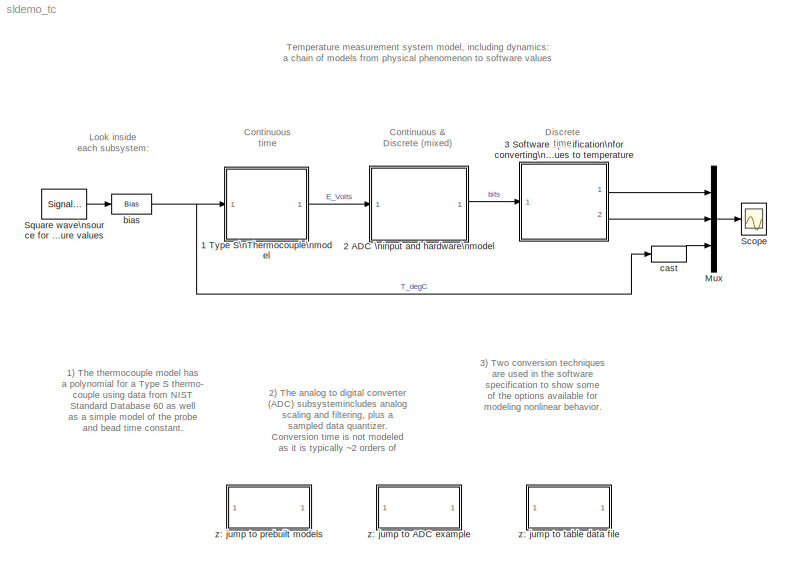
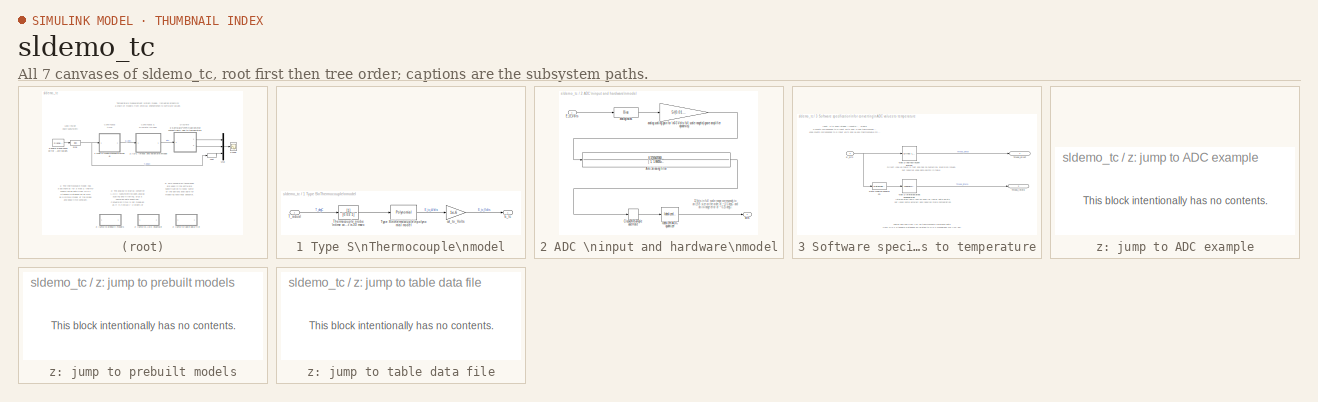
[diagram: thumbnail index - all 7 canvases of the model, root first then tree order]
MODEL sldemo_tc
KIND model
CONFIG PreLoadFcn = load sldemo_tc_data.mat\n
WORKSPACE source: external: M-Code  (data not in archive)
BLOCK [SubSystem] 1 Type S\nThermocouple\nmodel
  MinAlgLoopOccurrences = off
  Ports = [1, 1]
  PropExecContextAcrossSSBoundary = on
  RTWSystemCode = Auto
  TreatAsAtomicUnit = off
BLOCK [Outport] 1 Type S\nThermocouple\nmodel/E_tc
  BusOutputAsStruct = off
  IconDisplay = Port number
BLOCK [Inport] 1 Type S\nThermocouple\nmodel/T_actual
  IconDisplay = Port number
  LatchInput = off
  Port = 1
BLOCK [TransferFcn] 1 Type S\nThermocouple\nmodel/Thermocouple probe \ntime constant is 30 msec
  Denominator = [0.03 1]
BLOCK [Reference] 1 Type S\nThermocouple\nmodel/Type S\nthermocouple\npolynomial model  REF=simulink/Math\nOperations/Polynomial
  AttributesFormatString = %<Description>
  Description = 0 deg C ice reference         \n      microVolts = f(Temperature degC)   \n(Segment 1) input range: -50 to 1063 degC
  Ports = [1, 1]
  SourceBlock = simulink/Math\nOperations/Polynomial
  SourceType = Polyval
  coefs = [ +2.71443176145e-021, -1.25068871393e-017, +2.55744251786e-014, -3.31465196389e-011, +3.22028823036e-008, -2.32477968689e-005, +1.25934289740e-002, +5.40313308631e+000, +0.00000000000e+000 ]
BLOCK [Gain] 1 Type S\nThermocouple\nmodel/cvt_to_Volts
  Gain = 1e-6
  OutDataTypeMode = Inherit via internal rule
  ParameterDataTypeMode = Inherit via internal rule
  SaturateOnIntegerOverflow = off
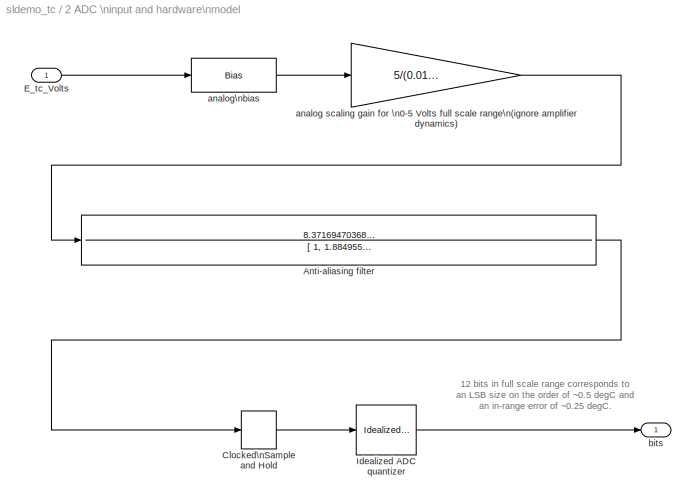
BLOCK [SubSystem] 2 ADC \ninput and hardware\nmodel
  MinAlgLoopOccurrences = off
  Ports = [1, 1]
  PropExecContextAcrossSSBoundary = on
  RTWSystemCode = Auto
  TreatAsAtomicUnit = off
BLOCK [TransferFcn] 2 ADC \ninput and hardware\nmodel/Anti-aliasing filter
  AttributesFormatString = %<Description>
  Denominator = [ 1, 1.884955592153875e+002, 1.776528792196083e+004, 8.371694703680943e+005 ]
  Description = Designed using Signal Processing Toolbox command:\n>> [num,den] = butter(3,15*2*pi,'low','s')
  Numerator = 8.371694703680943e+005
BLOCK [ZeroOrderHold] 2 ADC \ninput and hardware\nmodel/Clocked\nSample and Hold
  AttributesFormatString = (%<SampleTime> sec)
  SampleTime = 0.020
BLOCK [Inport] 2 ADC \ninput and hardware\nmodel/E_tc_Volts
  IconDisplay = Port number
  LatchInput = off
  Port = 1
BLOCK [Reference] 2 ADC \ninput and hardware\nmodel/Idealized ADC quantizer  REF=simulink_extras/Additional\nDiscrete/Idealized ADC quantizer
  AttributesFormatString = (settings: %<NumberOfConverterBits>-bit converter\\nVmin: %<Vmin>, Vmax: %<Vmax>)
  NumberOfConverterBits = 12
  OutputDataType = uint16
  OutputNegativeValues = off
  Ports = [1, 1]
  ShowPortLabels = on
  SourceBlock = simulink_extras/Additional\nDiscrete/Idealized ADC quantizer
  SourceType = IdealADC
  Vmax = 5
  Vmin = 0
BLOCK [Gain] 2 ADC \ninput and hardware\nmodel/analog scaling gain for \n0-5 Volts full scale range\n(ignore amplifier dynamics)
  Gain = 5/(0.018661+0.000236)
  OutDataTypeMode = Inherit via internal rule
  ParameterDataTypeMode = Inherit via internal rule
  SaturateOnIntegerOverflow = off
BLOCK [Bias] 2 ADC \ninput and hardware\nmodel/analog\nbias
  Bias = 0.000236
  SaturateOnIntegerOverflow = off
BLOCK [Outport] 2 ADC \ninput and hardware\nmodel/bits
  BusOutputAsStruct = off
  IconDisplay = Port number
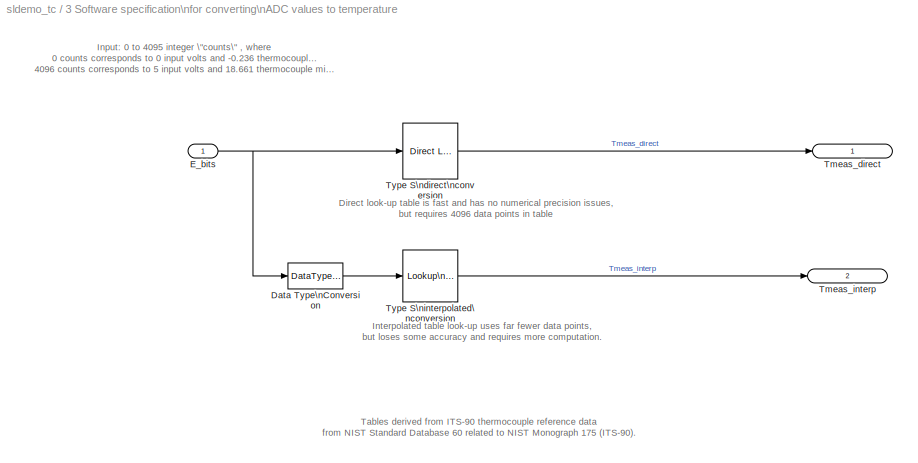
BLOCK [SubSystem] 3 Software specification\nfor converting\nADC values to temperature
  MinAlgLoopOccurrences = off
  Ports = [1, 2]
  PropExecContextAcrossSSBoundary = on
  RTWSystemCode = Auto
  TreatAsAtomicUnit = off
BLOCK [DataTypeConversion] 3 Software specification\nfor converting\nADC values to temperature/Data Type\nConversion
  OutDataTypeMode = single
  RndMeth = Floor
  SaturateOnIntegerOverflow = off
BLOCK [Inport] 3 Software specification\nfor converting\nADC values to temperature/E_bits
  DataType = uint16
  IconDisplay = Port number
  LatchInput = off
  Port = 1
  SignalType = real
BLOCK [Outport] 3 Software specification\nfor converting\nADC values to temperature/Tmeas_direct
  BusOutputAsStruct = off
  IconDisplay = Port number and signal name
BLOCK [Outport] 3 Software specification\nfor converting\nADC values to temperature/Tmeas_interp
  BusOutputAsStruct = off
  IconDisplay = Port number and signal name
  Port = 2
BLOCK [Reference] 3 Software specification\nfor converting\nADC values to temperature/Type S\ndirect\nconversion  REF=simulink/Lookup\nTables/Direct Lookup\nTable (n-D)
  AttributesFormatString = (%<mxTable>)
  Ports = [1, 1]
  SourceBlock = simulink/Lookup\nTables/Direct Lookup\nTable (n-D)
  SourceType = LookupNDDirect
  clipFlag = Warning
  explicitNumDims = 1
  maskTabDims = 1
  mxTable = TypeS_tdegc_vs_bits
  outDims = Element
  tabIsInput = off
BLOCK [Reference] 3 Software specification\nfor converting\nADC values to temperature/Type S\ninterpolated\nconversion  REF=simulink/Lookup\nTables/Lookup\nTable (n-D)
  AttributesFormatString = (%<tableData>)
  Ports = [1, 1]
  SourceBlock = simulink/Lookup\nTables/Lookup\nTable (n-D)
  SourceType = LookupNDInterp
  bp1 = TypeS_bits_bp
  bp2 = [10,22,31]
  bp3 = [1:3]
  bp4 = [1:3]
  bpcell = { [1:3], [1:3] }
  cacheBpFlag = on
  explicitNumDims = 2
  extrapMethod = None - Clip
  interpMethod = Linear
  numDimsPopupSelect = 1
  rangeErrorMode = Warning
  searchMode = Linear Search
  tableData = TypeS_tdegc_interp
  vectorInputFlag = off
BLOCK [Mux] Mux
  DisplayOption = bar
  Inputs = 3
  Ports = [3, 1]
BLOCK [Scope] Scope
  DataFormat = StructureWithTime
  NumInputPorts = 1
  Ports = [1]
  TimeRange = 10
  YMax = 225
  YMin = -25
BLOCK [SignalGenerator] Square wave\nsource for generating\ntemperature values
  Amplitude = 100
  Ports = [0, 1]
  WaveForm = square
BLOCK [Bias] bias
  Bias = 100
  SaturateOnIntegerOverflow = off
BLOCK [DataTypeConversion] cast
  OutDataTypeMode = single
  RndMeth = Floor
  SaturateOnIntegerOverflow = off
BLOCK [SubSystem] z: jump to ADC example
  MaskDescription = Jump to a model that exercises more details of the behavior of the Idealized ADC quantizer block that is part of the hardware model.
  MaskDisplay = disp('ADC Quantizer\\nDetails')
  MaskIconFrame = on
  MaskIconOpaque = on
  MaskIconRotate = none
  MaskIconUnits = autoscale
  MaskType = ADC quantizer details
  MinAlgLoopOccurrences = off
  OpenFcn = open_system('sldemo_adc_quantize','force')
  Ports = []
  PropExecContextAcrossSSBoundary = on
  RTWSystemCode = Auto
  TreatAsAtomicUnit = off
BLOCK [SubSystem] z: jump to prebuilt models
  MaskDescription = Jump to a model that exercises more details of the behavior of the Idealized ADC quantizer block that is part of the hardware model.
  MaskDisplay = disp('Additional\\nThermocouple\\nModels')
  MaskIconFrame = on
  MaskIconOpaque = on
  MaskIconRotate = none
  MaskIconUnits = autoscale
  MaskType = ADC quantizer details
  MinAlgLoopOccurrences = off
  OpenFcn = open_system('sldemo_tc_blocks','force')
  Ports = []
  PropExecContextAcrossSSBoundary = on
  RTWSystemCode = Auto
  TreatAsAtomicUnit = off
BLOCK [SubSystem] z: jump to table data file
  MaskDescription = Jump to a model that exercises more details of the behavior of the Idealized ADC quantizer block that is part of the hardware model.
  MaskDisplay = disp('Table Design\\nDetails')
  MaskIconFrame = on
  MaskIconOpaque = on
  MaskIconRotate = none
  MaskIconUnits = autoscale
  MaskType = ADC quantizer details
  MinAlgLoopOccurrences = off
  OpenFcn = edit sldemo_create_tc_tabledata.m
  Ports = []
  PropExecContextAcrossSSBoundary = on
  RTWSystemCode = Auto
  TreatAsAtomicUnit = off
ANNOTATION (root): 1) The thermocouple model has \na polynomial for a Type S thermo-\ncouple using data from NIST \nStandard Database 60 as well \nas a simple model of the probe\nand bead time constant.
ANNOTATION (root): 2) The analog to digital converter \n(ADC) subsystemincludes analog \nscaling and filtering, plus a \nsampled data quantizer. \nConversion time is not modeled \nas it is typically ~2 orders of \nmagnitude smaller in time scale \ncompared to the rest of the \nsimulation.
ANNOTATION (root): 3) Two conversion techniques \nare used in the software\nspecification to show some \nof the options available for \nmodeling nonlinear behavior.
ANNOTATION (root): Continuous &\nDiscrete (mixed)
ANNOTATION (root): Continuous\ntime
ANNOTATION (root): Discrete\ntime
ANNOTATION (root): Look inside\neach subsystem:
ANNOTATION (root): Temperature measurement system model, including dynamics:\na chain of models from physical phenomenon to software values
ANNOTATION 2 ADC \ninput and hardware\nmodel: 12 bits in full scale range corresponds to\nan LSB size on the order of ~0.5 degC and \nan in-range error of ~0.25 degC.
ANNOTATION 3 Software specification\nfor converting\nADC values to temperature: Direct look-up table is fast and has no numerical precision issues, \nbut requires 4096 data points in table
ANNOTATION 3 Software specification\nfor converting\nADC values to temperature: Input: 0 to 4095 integer \"counts\" , where\n 0 counts corresponds to 0 input volts and -0.236 thermocouple millivolts\n 4096 counts corresponds to 5 input volts and 18.661 thermocouple millivolts
ANNOTATION 3 Software specification\nfor converting\nADC values to temperature: Interpolated table look-up uses far fewer data points, \nbut loses some accuracy and requires more computation.
ANNOTATION 3 Software specification\nfor converting\nADC values to temperature: Tables derived from ITS-90 thermocouple reference data\nfrom NIST Standard Database 60 related to NIST Monograph 175 (ITS-90).
ANNOTATION z: jump to ADC example: This block intentionally has no contents.
ANNOTATION z: jump to prebuilt models: This block intentionally has no contents.
ANNOTATION z: jump to table data file: This block intentionally has no contents.
LINE 1 Type S\nThermocouple\nmodel/T_actual:1 -> 1 Type S\nThermocouple\nmodel/Thermocouple probe \ntime constant is 30 msec:1
LINE 1 Type S\nThermocouple\nmodel/Thermocouple probe \ntime constant is 30 msec:1 -> 1 Type S\nThermocouple\nmodel/Type S\nthermocouple\npolynomial model:1
LINE 1 Type S\nThermocouple\nmodel/Type S\nthermocouple\npolynomial model:1 -> 1 Type S\nThermocouple\nmodel/cvt_to_Volts:1
LINE 1 Type S\nThermocouple\nmodel/cvt_to_Volts:1 -> 1 Type S\nThermocouple\nmodel/E_tc:1
LINE 1 Type S\nThermocouple\nmodel:1 -> 2 ADC \ninput and hardware\nmodel:1
LINE 2 ADC \ninput and hardware\nmodel/Anti-aliasing filter:1 -> 2 ADC \ninput and hardware\nmodel/Clocked\nSample and Hold:1
LINE 2 ADC \ninput and hardware\nmodel/Clocked\nSample and Hold:1 -> 2 ADC \ninput and hardware\nmodel/Idealized ADC quantizer:1
LINE 2 ADC \ninput and hardware\nmodel/E_tc_Volts:1 -> 2 ADC \ninput and hardware\nmodel/analog\nbias:1
LINE 2 ADC \ninput and hardware\nmodel/Idealized ADC quantizer:1 -> 2 ADC \ninput and hardware\nmodel/bits:1
LINE 2 ADC \ninput and hardware\nmodel/analog scaling gain for \n0-5 Volts full scale range\n(ignore amplifier dynamics):1 -> 2 ADC \ninput and hardware\nmodel/Anti-aliasing filter:1
LINE 2 ADC \ninput and hardware\nmodel/analog\nbias:1 -> 2 ADC \ninput and hardware\nmodel/analog scaling gain for \n0-5 Volts full scale range\n(ignore amplifier dynamics):1
LINE 2 ADC \ninput and hardware\nmodel:1 -> 3 Software specification\nfor converting\nADC values to temperature:1
LINE 3 Software specification\nfor converting\nADC values to temperature/Data Type\nConversion:1 -> 3 Software specification\nfor converting\nADC values to temperature/Type S\ninterpolated\nconversion:1
NET 3 Software specification\nfor converting\nADC values to temperature/E_bits:1 -> 3 Software specification\nfor converting\nADC values to temperature/Data Type\nConversion:1, 3 Software specification\nfor converting\nADC values to temperature/Type S\ndirect\nconversion:1
LINE 3 Software specification\nfor converting\nADC values to temperature/Type S\ndirect\nconversion:1 -> 3 Software specification\nfor converting\nADC values to temperature/Tmeas_direct:1
LINE 3 Software specification\nfor converting\nADC values to temperature/Type S\ninterpolated\nconversion:1 -> 3 Software specification\nfor converting\nADC values to temperature/Tmeas_interp:1
LINE 3 Software specification\nfor converting\nADC values to temperature:1 -> Mux:1
LINE 3 Software specification\nfor converting\nADC values to temperature:2 -> Mux:2
LINE Mux:1 -> Scope:1
LINE Square wave\nsource for generating\ntemperature values:1 -> bias:1
NET bias:1 -> 1 Type S\nThermocouple\nmodel:1, cast:1
LINE cast:1 -> Mux:3
note: NET lines group one-source signal fan-out (src -> all destinations, sorted); 1:1 wires keep LINE
